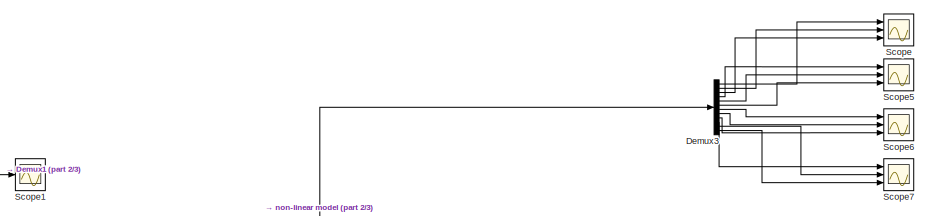
[diagram: root canvas - part 1/3, top center region]
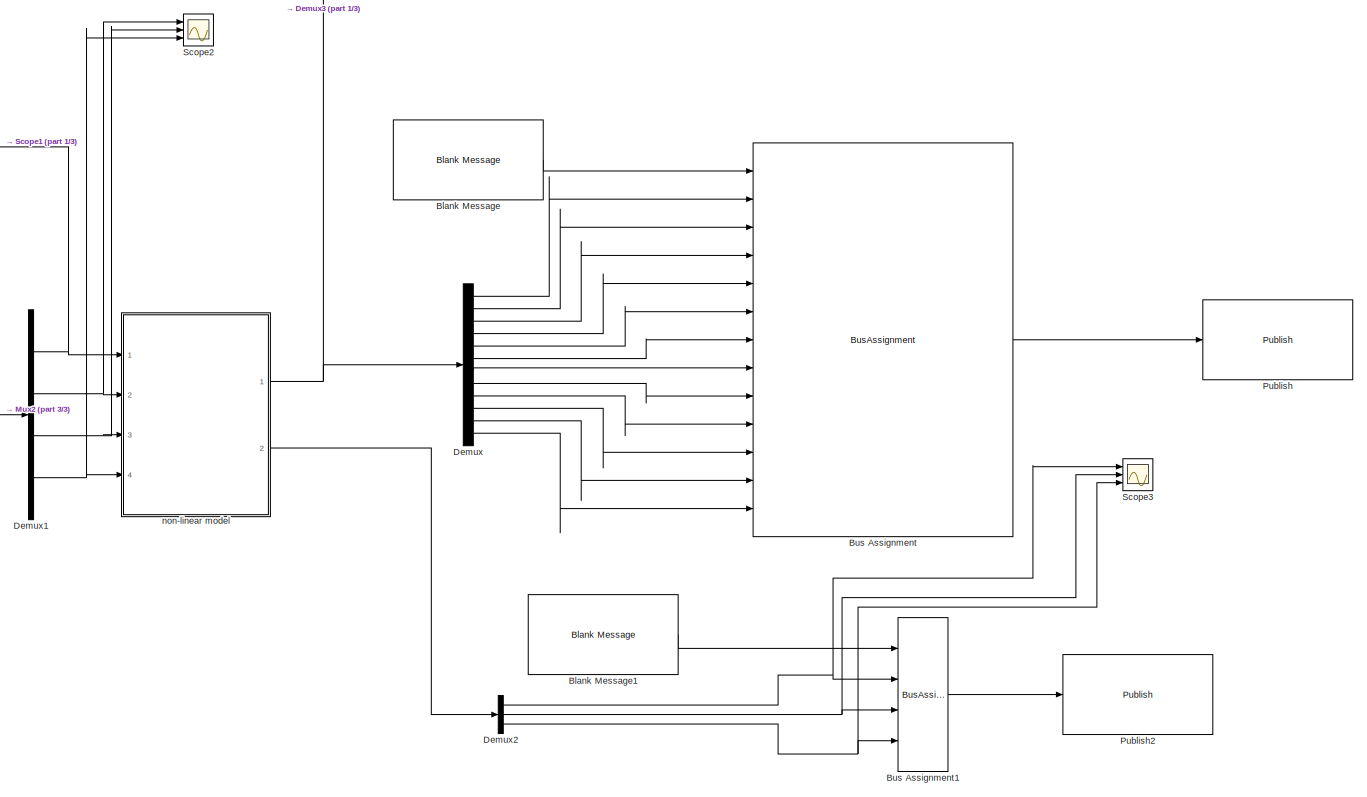
[diagram: root canvas - part 2/3, most of the canvas]
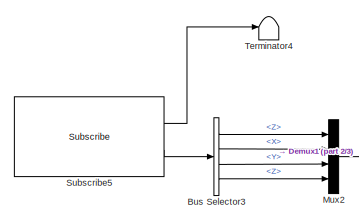
[diagram: root canvas - part 3/3, middle left region]
MODEL slx_ee8bbd897f2d
KIND model
CONFIG AbsTol = auto
CONFIG EnableMultiTasking = off
CONFIG FixedStep = auto
CONFIG MaxStep = 1e-03
CONFIG MinStep = auto
CONFIG RelTol = auto
CONFIG SampleTimeConstraint = Unconstrained
CONFIG Solver = VariableStepAuto
CONFIG SolverName = VariableStepAuto
CONFIG StartTime = 0.0
CONFIG StopTime = 30
BLOCK [Reference] Blank Message  REF=robotlib/Blank Message
  Ports = [0, 1]
  SourceBlock = robotlib/Blank Message
  SourceProductBaseCode = RR
  SourceType = ROS Blank Message
BLOCK [Reference] Blank Message1  REF=robotlib/Blank Message
  Ports = [0, 1]
  SourceBlock = robotlib/Blank Message
  SourceProductBaseCode = RR
  SourceType = ROS Blank Message
BLOCK [BusAssignment] Bus Assignment
  AssignedSignals = Pose.Pose.Position.X,Pose.Pose.Position.Y,Pose.Pose.Position.Z,Twist.Twist.Linear.X,Twist.Twist.Linear.Y,Twist.Twist.Linear.Z,Pose.Pose.Orientation.X,Pose.Pose.Orientation.Y,Pose.Pose.Orientation.Z,Twist.Twist.Angular.X,Twist.Twist.Angular.Y,Twist.Twist.Angular.Z
  Ports = [13, 1]
BLOCK [BusAssignment] Bus Assignment1
  AssignedSignals = X,Y,Z
  Ports = [4, 1]
BLOCK [BusSelector] Bus Selector3
  OutputSignals = Force.Z,Torque.X,Torque.Y,Torque.Z
  Ports = [1, 4]
BLOCK [Demux] Demux
  Outputs = 12
  Ports = [1, 12]
BLOCK [Demux] Demux1
  Ports = [1, 4]
BLOCK [Demux] Demux2
  Outputs = 3
  Ports = [1, 3]
BLOCK [Demux] Demux3
  Outputs = 12
  Ports = [1, 12]
BLOCK [Mux] Mux2
  DisplayOption = bar
  Ports = [4, 1]
BLOCK [Reference] Publish  REF=robotlib/Publish
  Ports = [1]
  SourceBlock = robotlib/Publish
  SourceProductBaseCode = RR
  SourceType = ROS Publish
BLOCK [Reference] Publish2  REF=robotlib/Publish
  Ports = [1]
  SourceBlock = robotlib/Publish
  SourceProductBaseCode = RR
  SourceType = ROS Publish
BLOCK [Scope] Scope
  Floating = off
  NumInputPorts = 3
  Ports = [3]
  ScopeSpecificationString = Simulink.scopes.TimeScopeBlockCfg('CurrentConfiguration', extmgr.ConfigurationSet(extmgr.Configuration('Core','General UI',true),extmgr.Configuration('Core','Source UI',true),extmgr.Configuration('Sources','WiredSimulink',true,'DataLoggingVariableName','ScopeData1'),extmgr.Configuration('Visuals','Time Domain',true,'SerializedDisplays',{struct('MinYLimReal','-8.15859','MaxYLimReal','23.1549','YLab...<+1500ch>
BLOCK [Scope] Scope1
  Floating = off
  NumInputPorts = 1
  Ports = [1]
  ScopeSpecificationString = Simulink.scopes.TimeScopeBlockCfg('CurrentConfiguration', extmgr.ConfigurationSet(extmgr.Configuration('Core','General UI',true),extmgr.Configuration('Core','Source UI',true),extmgr.Configuration('Sources','WiredSimulink',true,'DataLoggingVariableName','ScopeData1'),extmgr.Configuration('Visuals','Time Domain',true,'SerializedDisplays',{struct('MinYLimReal','4.1218','MaxYLimReal','5.22372','YLabel...<+1460ch>
BLOCK [Scope] Scope2
  Floating = off
  NumInputPorts = 3
  Ports = [3]
  ScopeSpecificationString = Simulink.scopes.TimeScopeBlockCfg('CurrentConfiguration', extmgr.ConfigurationSet(extmgr.Configuration('Core','General UI',true),extmgr.Configuration('Core','Source UI',true),extmgr.Configuration('Sources','WiredSimulink',true,'DataLoggingVariableName','ScopeData1'),extmgr.Configuration('Visuals','Time Domain',true,'SerializedDisplays',{struct('MinYLimReal','-1.00000','MaxYLimReal','1.00000','YLab...<+1463ch>
BLOCK [Scope] Scope3
  Floating = off
  NumInputPorts = 3
  Ports = [3]
  ScopeSpecificationString = Simulink.scopes.TimeScopeBlockCfg('CurrentConfiguration', extmgr.ConfigurationSet(extmgr.Configuration('Core','General UI',true),extmgr.Configuration('Core','Source UI',true),extmgr.Configuration('Sources','WiredSimulink',true,'DataLoggingVariableName','ScopeData1'),extmgr.Configuration('Visuals','Time Domain',true,'SerializedDisplays',{struct('MinYLimReal','-8.12837','MaxYLimReal','23.15537','YLa...<+1625ch>
BLOCK [Scope] Scope5
  Floating = off
  NumInputPorts = 3
  Ports = [3]
  ScopeSpecificationString = Simulink.scopes.TimeScopeBlockCfg('CurrentConfiguration', extmgr.ConfigurationSet(extmgr.Configuration('Core','General UI',true),extmgr.Configuration('Core','Source UI',true),extmgr.Configuration('Sources','WiredSimulink',true,'DataLoggingVariableName','ScopeData5'),extmgr.Configuration('Visuals','Time Domain',true,'SerializedDisplays',{struct('MinYLimReal','-3.00652','MaxYLimReal','3.00687','YLab...<+1554ch>
BLOCK [Scope] Scope6
  Floating = off
  NumInputPorts = 3
  Ports = [3]
  ScopeSpecificationString = Simulink.scopes.TimeScopeBlockCfg('CurrentConfiguration', extmgr.ConfigurationSet(extmgr.Configuration('Core','General UI',true),extmgr.Configuration('Core','Source UI',true),extmgr.Configuration('Sources','WiredSimulink',true,'DataLoggingVariableName','ScopeData6'),extmgr.Configuration('Visuals','Time Domain',true,'SerializedDisplays',{struct('MinYLimReal','-32055587414553604195805581841691521843...<+1824ch>
BLOCK [Scope] Scope7
  Floating = off
  NumInputPorts = 3
  Ports = [3]
  ScopeSpecificationString = Simulink.scopes.TimeScopeBlockCfg('CurrentConfiguration', extmgr.ConfigurationSet(extmgr.Configuration('Core','General UI',true),extmgr.Configuration('Core','Source UI',true),extmgr.Configuration('Sources','WiredSimulink',true,'DataLoggingVariableName','ScopeData7'),extmgr.Configuration('Visuals','Time Domain',true,'SerializedDisplays',{struct('MinYLimReal','-3.6291','MaxYLimReal','3.37226','YLabe...<+1617ch>
BLOCK [Reference] Subscribe5  REF=robotlib/Subscribe
  Ports = [0, 2]
  SourceBlock = robotlib/Subscribe
  SourceProductBaseCode = RR
  SourceType = ROS Subscribe
BLOCK [Terminator] Terminator4
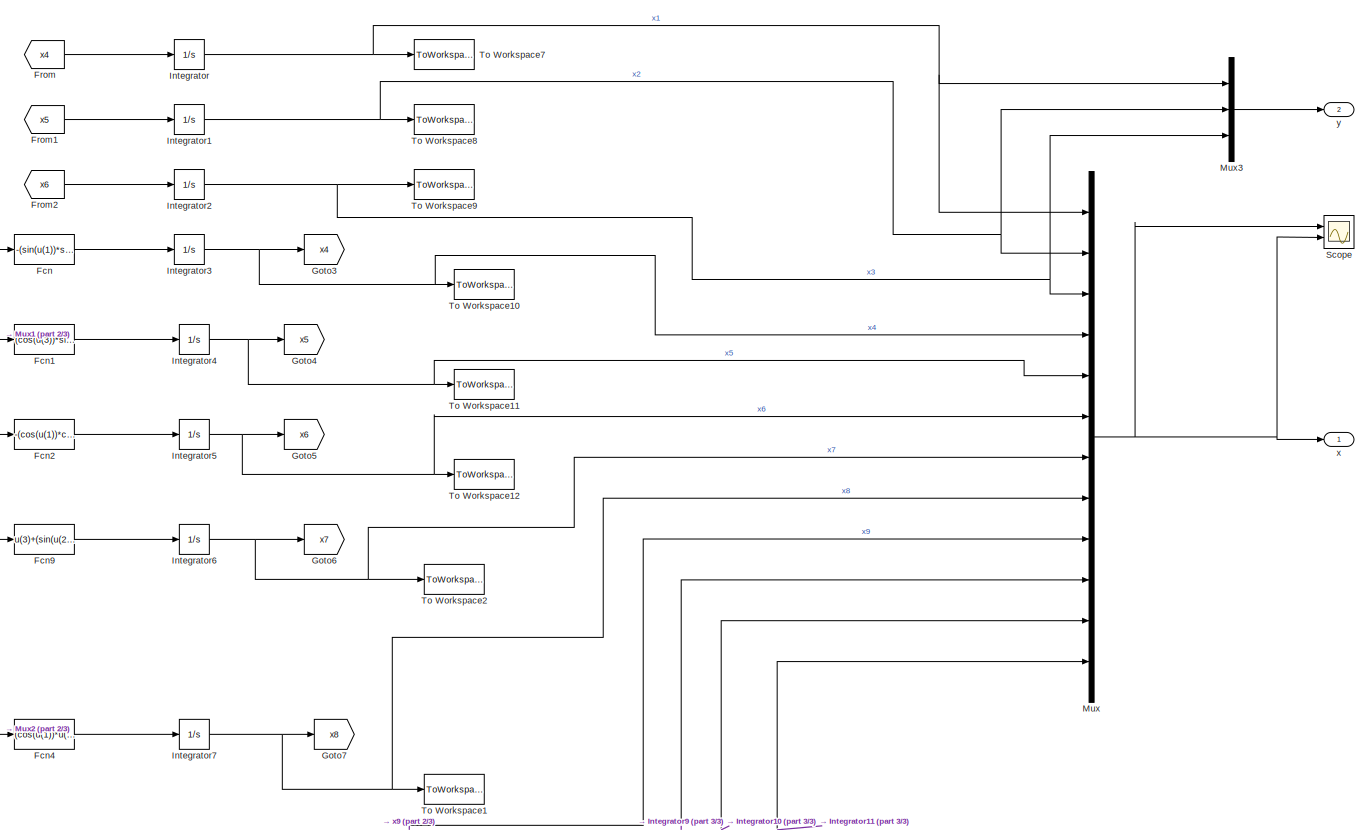
[diagram: non-linear model - part 1/3, top center region]
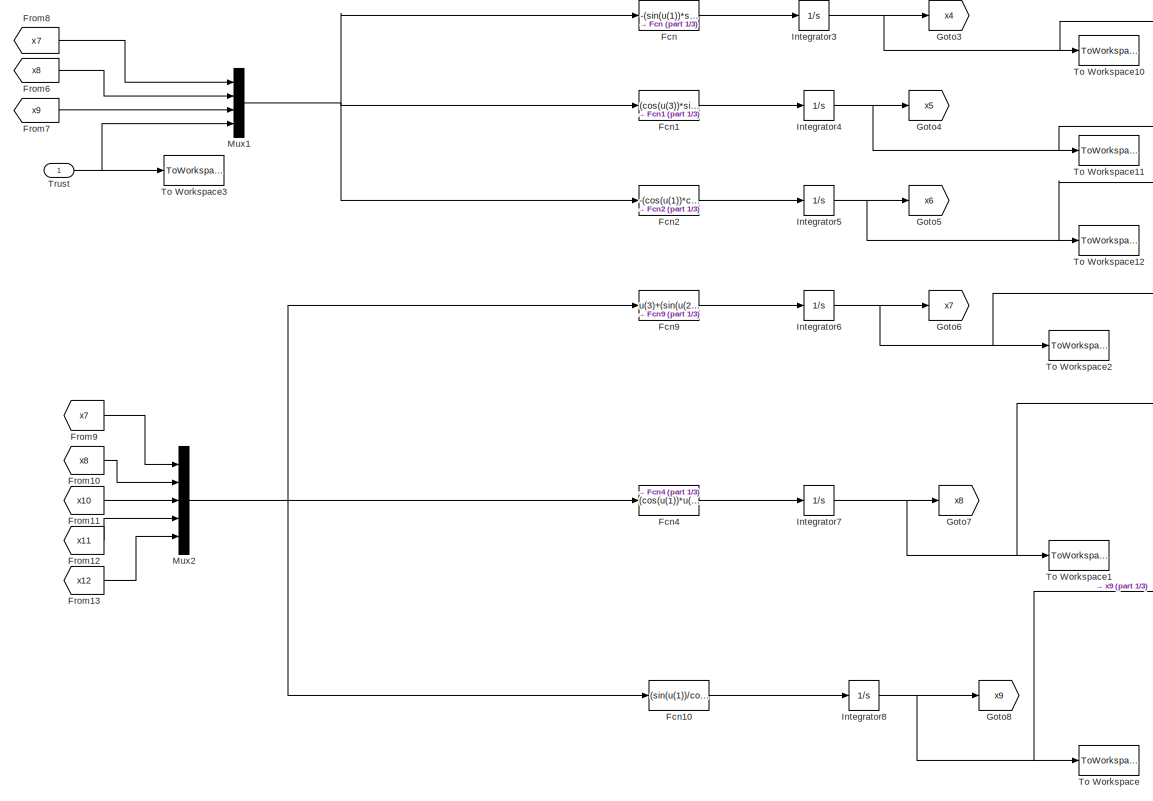
[diagram: non-linear model - part 2/3, middle left region]
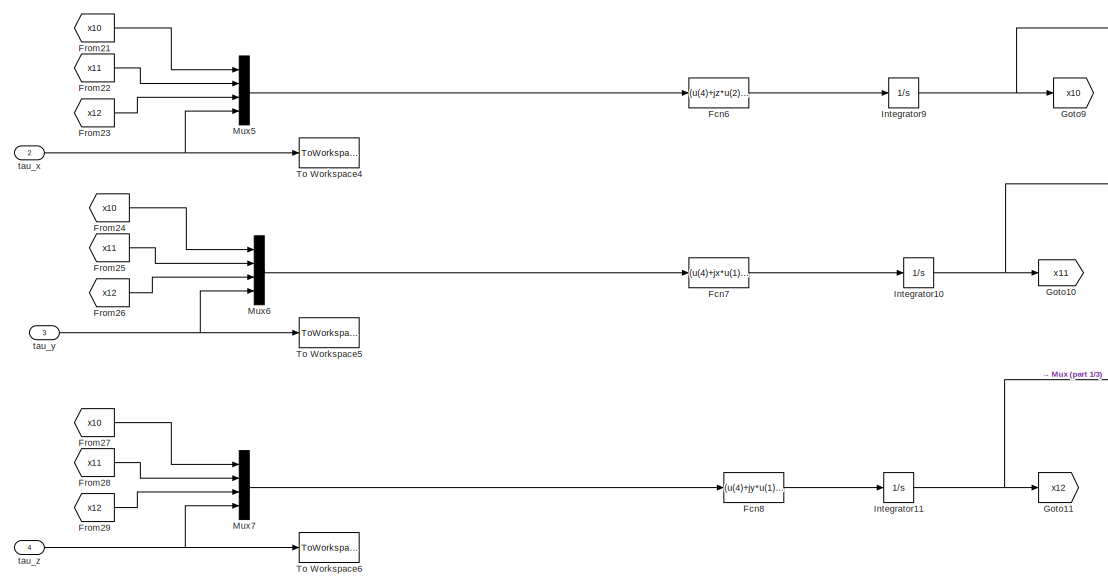
[diagram: non-linear model - part 3/3, bottom left region]
BLOCK [SubSystem] non-linear model
  Ports = [4, 2]
  RequestExecContextInheritance = off
BLOCK [Fcn] non-linear model/Fcn
  Expr = -(sin(u(1))*sin(u(3))+cos(u(1))*sin(u(2))*cos(u(3)))*u(4)/m
BLOCK [Fcn] non-linear model/Fcn1
  Expr = (cos(u(3))*sin(u(1))-cos(u(1))*sin(u(2))*sin(u(3)))*u(4)/m
BLOCK [Fcn] non-linear model/Fcn10
  Expr = (sin(u(1))/cos(u(2)))*u(4)+(cos(u(1))/cos(u(2)))*u(5)
BLOCK [Fcn] non-linear model/Fcn2
  Expr = -(cos(u(1))*cos(u(2))*u(4)/m)+g
BLOCK [Fcn] non-linear model/Fcn4
  Expr = (cos(u(1))*u(4)-sin(u(1))*u(5))
BLOCK [Fcn] non-linear model/Fcn6
  Expr = (u(4)+jz*u(2)*u(3)-jy*u(1)*u(2))/jx
BLOCK [Fcn] non-linear model/Fcn7
  Expr = (u(4)+jx*u(1)*u(3)-jz*u(1)*u(2))/jy
BLOCK [Fcn] non-linear model/Fcn8
  Expr = (u(4)+jy*u(1)*u(2)-jx*u(1)*u(2))/jz
BLOCK [Fcn] non-linear model/Fcn9
  Expr = u(3)+(sin(u(2))/cos(u(2)))*(sin(u(1))*u(4)+cos(u(1))*u(5))
BLOCK [From] non-linear model/From
  GotoTag = x4
BLOCK [From] non-linear model/From1
  GotoTag = x5
BLOCK [From] non-linear model/From10
  GotoTag = x8
BLOCK [From] non-linear model/From11
  GotoTag = x10
BLOCK [From] non-linear model/From12
  GotoTag = x11
BLOCK [From] non-linear model/From13
  GotoTag = x12
BLOCK [From] non-linear model/From2
  GotoTag = x6
BLOCK [From] non-linear model/From21
  GotoTag = x10
BLOCK [From] non-linear model/From22
  GotoTag = x11
BLOCK [From] non-linear model/From23
  GotoTag = x12
BLOCK [From] non-linear model/From24
  GotoTag = x10
BLOCK [From] non-linear model/From25
  GotoTag = x11
BLOCK [From] non-linear model/From26
  GotoTag = x12
BLOCK [From] non-linear model/From27
  GotoTag = x10
BLOCK [From] non-linear model/From28
  GotoTag = x11
BLOCK [From] non-linear model/From29
  GotoTag = x12
BLOCK [From] non-linear model/From6
  GotoTag = x8
BLOCK [From] non-linear model/From7
  GotoTag = x9
BLOCK [From] non-linear model/From8
  GotoTag = x7
BLOCK [From] non-linear model/From9
  GotoTag = x7
BLOCK [Goto] non-linear model/Goto10
  GotoTag = x11
BLOCK [Goto] non-linear model/Goto11
  GotoTag = x12
BLOCK [Goto] non-linear model/Goto3
  GotoTag = x4
BLOCK [Goto] non-linear model/Goto4
  GotoTag = x5
BLOCK [Goto] non-linear model/Goto5
  GotoTag = x6
BLOCK [Goto] non-linear model/Goto6
  GotoTag = x7
BLOCK [Goto] non-linear model/Goto7
  GotoTag = x8
BLOCK [Goto] non-linear model/Goto8
  GotoTag = x9
BLOCK [Goto] non-linear model/Goto9
  GotoTag = x10
BLOCK [Integrator] non-linear model/Integrator
  InitialCondition = xo(1)
  Ports = [1, 1]
BLOCK [Integrator] non-linear model/Integrator1
  InitialCondition = xo(2)
  Ports = [1, 1]
BLOCK [Integrator] non-linear model/Integrator10
  InitialCondition = xo(11)
  Ports = [1, 1]
BLOCK [Integrator] non-linear model/Integrator11
  InitialCondition = xo(12)
  Ports = [1, 1]
BLOCK [Integrator] non-linear model/Integrator2
  InitialCondition = xo(3)
  Ports = [1, 1]
BLOCK [Integrator] non-linear model/Integrator3
  InitialCondition = xo(4)
  Ports = [1, 1]
BLOCK [Integrator] non-linear model/Integrator4
  InitialCondition = xo(5)
  Ports = [1, 1]
BLOCK [Integrator] non-linear model/Integrator5
  InitialCondition = xo(6)
  Ports = [1, 1]
BLOCK [Integrator] non-linear model/Integrator6
  InitialCondition = xo(7)
  Ports = [1, 1]
BLOCK [Integrator] non-linear model/Integrator7
  InitialCondition = xo(8)
  Ports = [1, 1]
BLOCK [Integrator] non-linear model/Integrator8
  InitialCondition = xo(9)
  Ports = [1, 1]
BLOCK [Integrator] non-linear model/Integrator9
  InitialCondition = xo(10)
  Ports = [1, 1]
BLOCK [Mux] non-linear model/Mux
  DisplayOption = bar
  Inputs = 12
  Ports = [12, 1]
BLOCK [Mux] non-linear model/Mux1
  DisplayOption = bar
  Ports = [4, 1]
BLOCK [Mux] non-linear model/Mux2
  DisplayOption = bar
  Inputs = 5
  Ports = [5, 1]
BLOCK [Mux] non-linear model/Mux3
  DisplayOption = bar
  Inputs = 3
  Ports = [3, 1]
BLOCK [Mux] non-linear model/Mux5
  DisplayOption = bar
  Ports = [4, 1]
BLOCK [Mux] non-linear model/Mux6
  DisplayOption = bar
  Ports = [4, 1]
BLOCK [Mux] non-linear model/Mux7
  DisplayOption = bar
  Ports = [4, 1]
BLOCK [Scope] non-linear model/Scope
  Floating = off
  NumInputPorts = 2
  Ports = [2]
  ScopeSpecificationString = Simulink.scopes.TimeScopeBlockCfg('CurrentConfiguration', extmgr.ConfigurationSet(extmgr.Configuration('Core','General UI',true),extmgr.Configuration('Core','Source UI',true),extmgr.Configuration('Sources','WiredSimulink',true,'DataLoggingVariableName','ScopeData2'),extmgr.Configuration('Visuals','Time Domain',true,'SerializedDisplays',{struct('MinYLimReal','10.025','MaxYLimReal','10.0314','YLabel...<+1743ch>
BLOCK [ToWorkspace] non-linear model/To Workspace
  FixptAsFi = on
  MaxDataPoints = inf
  Ports = [1]
  SampleTime = -1
  SaveFormat = Timeseries
  VariableName = x9
BLOCK [ToWorkspace] non-linear model/To Workspace1
  FixptAsFi = on
  MaxDataPoints = inf
  Ports = [1]
  SampleTime = -1
  SaveFormat = Timeseries
  VariableName = x8
BLOCK [ToWorkspace] non-linear model/To Workspace10
  FixptAsFi = on
  MaxDataPoints = inf
  Ports = [1]
  SampleTime = -1
  SaveFormat = Timeseries
  VariableName = x4
BLOCK [ToWorkspace] non-linear model/To Workspace11
  FixptAsFi = on
  MaxDataPoints = inf
  Ports = [1]
  SampleTime = -1
  SaveFormat = Timeseries
  VariableName = x5
BLOCK [ToWorkspace] non-linear model/To Workspace12
  FixptAsFi = on
  MaxDataPoints = inf
  Ports = [1]
  SampleTime = -1
  SaveFormat = Timeseries
  VariableName = x6
BLOCK [ToWorkspace] non-linear model/To Workspace2
  FixptAsFi = on
  MaxDataPoints = inf
  Ports = [1]
  SampleTime = -1
  SaveFormat = Timeseries
  VariableName = x7
BLOCK [ToWorkspace] non-linear model/To Workspace3
  FixptAsFi = on
  MaxDataPoints = inf
  Ports = [1]
  SampleTime = -1
  SaveFormat = Timeseries
  VariableName = trust
BLOCK [ToWorkspace] non-linear model/To Workspace4
  FixptAsFi = on
  MaxDataPoints = inf
  Ports = [1]
  SampleTime = -1
  SaveFormat = Timeseries
  VariableName = tau_x
BLOCK [ToWorkspace] non-linear model/To Workspace5
  FixptAsFi = on
  MaxDataPoints = inf
  Ports = [1]
  SampleTime = -1
  SaveFormat = Timeseries
  VariableName = tau_y
BLOCK [ToWorkspace] non-linear model/To Workspace6
  FixptAsFi = on
  MaxDataPoints = inf
  Ports = [1]
  SampleTime = -1
  SaveFormat = Timeseries
  VariableName = tau_z
BLOCK [ToWorkspace] non-linear model/To Workspace7
  FixptAsFi = on
  MaxDataPoints = inf
  Ports = [1]
  SampleTime = -1
  SaveFormat = Timeseries
  VariableName = x1
BLOCK [ToWorkspace] non-linear model/To Workspace8
  FixptAsFi = on
  MaxDataPoints = inf
  Ports = [1]
  SampleTime = -1
  SaveFormat = Timeseries
  VariableName = x2
BLOCK [ToWorkspace] non-linear model/To Workspace9
  FixptAsFi = on
  MaxDataPoints = inf
  Ports = [1]
  SampleTime = -1
  SaveFormat = Timeseries
  VariableName = x3
BLOCK [Inport] non-linear model/Trust
BLOCK [Inport] non-linear model/tau_x
  Port = 2
BLOCK [Inport] non-linear model/tau_y
  Port = 3
BLOCK [Inport] non-linear model/tau_z
  Port = 4
BLOCK [Outport] non-linear model/x
BLOCK [Outport] non-linear model/y
  Port = 2
LINE Blank Message1:1 -> Bus Assignment1:1
LINE Blank Message:1 -> Bus Assignment:1
LINE Bus Assignment1:1 -> Publish2:1
LINE Bus Assignment:1 -> Publish:1
LINE Bus Selector3:1 -> Mux2:1
LINE Bus Selector3:2 -> Mux2:2
LINE Bus Selector3:3 -> Mux2:3
LINE Bus Selector3:4 -> Mux2:4
NET Demux1:1 -> Scope1:1, non-linear model:1
NET Demux1:2 -> Scope2:1, non-linear model:2
NET Demux1:3 -> Scope2:2, non-linear model:3
NET Demux1:4 -> Scope2:3, non-linear model:4
NET Demux2:1 -> Bus Assignment1:2, Scope3:1
NET Demux2:2 -> Bus Assignment1:3, Scope3:2
NET Demux2:3 -> Bus Assignment1:4, Scope3:3
LINE Demux3:1 -> Scope:1
LINE Demux3:10 -> Scope7:1
LINE Demux3:11 -> Scope7:2
LINE Demux3:12 -> Scope7:3
LINE Demux3:2 -> Scope:2
LINE Demux3:3 -> Scope:3
LINE Demux3:4 -> Scope5:1
LINE Demux3:5 -> Scope5:2
LINE Demux3:6 -> Scope5:3
LINE Demux3:7 -> Scope6:1
LINE Demux3:8 -> Scope6:2
LINE Demux3:9 -> Scope6:3
LINE Demux:1 -> Bus Assignment:2
LINE Demux:10 -> Bus Assignment:11
LINE Demux:11 -> Bus Assignment:12
LINE Demux:12 -> Bus Assignment:13
LINE Demux:2 -> Bus Assignment:3
LINE Demux:3 -> Bus Assignment:4
LINE Demux:4 -> Bus Assignment:5
LINE Demux:5 -> Bus Assignment:6
LINE Demux:6 -> Bus Assignment:7
LINE Demux:7 -> Bus Assignment:8
LINE Demux:8 -> Bus Assignment:9
LINE Demux:9 -> Bus Assignment:10
LINE Mux2:1 -> Demux1:1
LINE Subscribe5:1 -> Terminator4:1
LINE Subscribe5:2 -> Bus Selector3:1
LINE non-linear model/Fcn10:1 -> non-linear model/Integrator8:1
LINE non-linear model/Fcn1:1 -> non-linear model/Integrator4:1
LINE non-linear model/Fcn2:1 -> non-linear model/Integrator5:1
LINE non-linear model/Fcn4:1 -> non-linear model/Integrator7:1
LINE non-linear model/Fcn6:1 -> non-linear model/Integrator9:1
LINE non-linear model/Fcn7:1 -> non-linear model/Integrator10:1
LINE non-linear model/Fcn8:1 -> non-linear model/Integrator11:1
LINE non-linear model/Fcn9:1 -> non-linear model/Integrator6:1
LINE non-linear model/Fcn:1 -> non-linear model/Integrator3:1
LINE non-linear model/From10:1 -> non-linear model/Mux2:2
LINE non-linear model/From11:1 -> non-linear model/Mux2:3
LINE non-linear model/From12:1 -> non-linear model/Mux2:4
LINE non-linear model/From13:1 -> non-linear model/Mux2:5
LINE non-linear model/From1:1 -> non-linear model/Integrator1:1
LINE non-linear model/From21:1 -> non-linear model/Mux5:1
LINE non-linear model/From22:1 -> non-linear model/Mux5:2
LINE non-linear model/From23:1 -> non-linear model/Mux5:3
LINE non-linear model/From24:1 -> non-linear model/Mux6:1
LINE non-linear model/From25:1 -> non-linear model/Mux6:2
LINE non-linear model/From26:1 -> non-linear model/Mux6:3
LINE non-linear model/From27:1 -> non-linear model/Mux7:1
LINE non-linear model/From28:1 -> non-linear model/Mux7:2
LINE non-linear model/From29:1 -> non-linear model/Mux7:3
LINE non-linear model/From2:1 -> non-linear model/Integrator2:1
LINE non-linear model/From6:1 -> non-linear model/Mux1:2
LINE non-linear model/From7:1 -> non-linear model/Mux1:3
LINE non-linear model/From8:1 -> non-linear model/Mux1:1
LINE non-linear model/From9:1 -> non-linear model/Mux2:1
LINE non-linear model/From:1 -> non-linear model/Integrator:1
NET non-linear model/Integrator10:1 -> non-linear model/Goto10:1, non-linear model/Mux:11
NET non-linear model/Integrator11:1 -> non-linear model/Goto11:1, non-linear model/Mux:12
NET non-linear model/Integrator1:1 -> non-linear model/Mux3:2, non-linear model/Mux:2, non-linear model/To Workspace8:1
NET non-linear model/Integrator2:1 -> non-linear model/Mux3:3, non-linear model/Mux:3, non-linear model/To Workspace9:1
NET non-linear model/Integrator3:1 -> non-linear model/Goto3:1, non-linear model/Mux:4, non-linear model/To Workspace10:1
NET non-linear model/Integrator4:1 -> non-linear model/Goto4:1, non-linear model/Mux:5, non-linear model/To Workspace11:1
NET non-linear model/Integrator5:1 -> non-linear model/Goto5:1, non-linear model/Mux:6, non-linear model/To Workspace12:1
NET non-linear model/Integrator6:1 -> non-linear model/Goto6:1, non-linear model/Mux:7, non-linear model/To Workspace2:1
NET non-linear model/Integrator7:1 -> non-linear model/Goto7:1, non-linear model/Mux:8, non-linear model/To Workspace1:1
NET non-linear model/Integrator8:1 -> non-linear model/Goto8:1, non-linear model/Mux:9, non-linear model/To Workspace:1
NET non-linear model/Integrator9:1 -> non-linear model/Goto9:1, non-linear model/Mux:10
NET non-linear model/Integrator:1 -> non-linear model/Mux3:1, non-linear model/Mux:1, non-linear model/To Workspace7:1
NET non-linear model/Mux1:1 -> non-linear model/Fcn1:1, non-linear model/Fcn2:1, non-linear model/Fcn:1
NET non-linear model/Mux2:1 -> non-linear model/Fcn10:1, non-linear model/Fcn4:1, non-linear model/Fcn9:1
LINE non-linear model/Mux3:1 -> non-linear model/y:1
LINE non-linear model/Mux5:1 -> non-linear model/Fcn6:1
LINE non-linear model/Mux6:1 -> non-linear model/Fcn7:1
LINE non-linear model/Mux7:1 -> non-linear model/Fcn8:1
NET non-linear model/Mux:1 -> non-linear model/Scope:1, non-linear model/Scope:2, non-linear model/x:1
NET non-linear model/Trust:1 -> non-linear model/Mux1:4, non-linear model/To Workspace3:1
NET non-linear model/tau_x:1 -> non-linear model/Mux5:4, non-linear model/To Workspace4:1
NET non-linear model/tau_y:1 -> non-linear model/Mux6:4, non-linear model/To Workspace5:1
NET non-linear model/tau_z:1 -> non-linear model/Mux7:4, non-linear model/To Workspace6:1
NET non-linear model:1 -> Demux3:1, Demux:1
LINE non-linear model:2 -> Demux2:1
note: NET lines group one-source signal fan-out (src -> all destinations, sorted); 1:1 wires keep LINE
